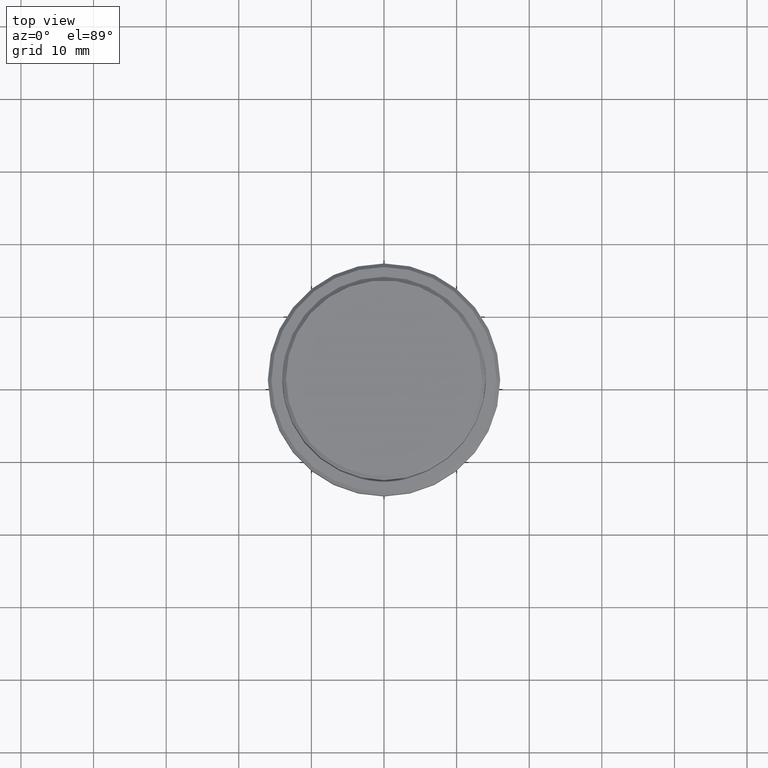
[diagram: clean part render]
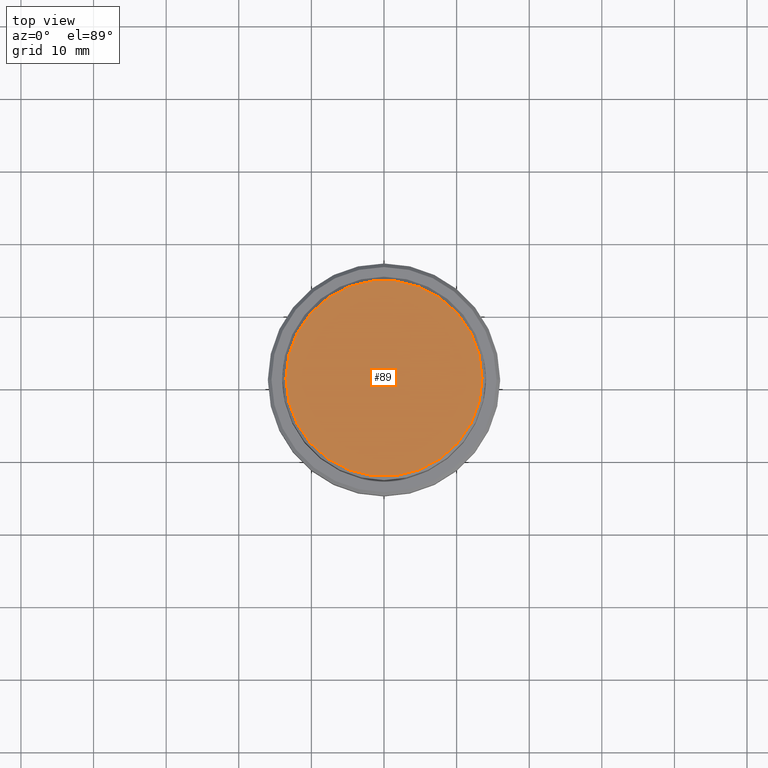
[diagram: same view with one face highlighted and labeled with its STEP entity id]
A machine part, top view. The second image highlights one B-rep face of the part: STEP entity #89.
In plain terms, the highlighted planar face has unit normal (0, -0, 1).
Its self-contained STEP definition (entity closure, byte-faithful):
#9 = CARTESIAN_POINT ( 'NONE',  ( 0.000000000000000000, 0.000000000000000000, 0.000000000000000000 ) ) ;
#89 = ADVANCED_FACE ( 'NONE', ( #781 ), #1082, .T. ) ;
#117 = ORIENTED_EDGE ( 'NONE', *, *, #202, .T. ) ;
#156 = DIRECTION ( 'NONE',  ( 1.000000000000000000, 0.000000000000000000, 0.000000000000000000 ) ) ;
#202 = EDGE_CURVE ( 'NONE', #363, #652, #1283, .T. ) ;
#214 = ORIENTED_EDGE ( 'NONE', *, *, #1078, .T. ) ;
#322 = CARTESIAN_POINT ( 'NONE',  ( 13.49999999999999822, 1.683889348827610456E-15, 0.000000000000000000 ) ) ;
#363 = VERTEX_POINT ( 'NONE', #1043 ) ;
#365 = CARTESIAN_POINT ( 'NONE',  ( 0.000000000000000000, 0.000000000000000000, 0.000000000000000000 ) ) ;
#454 = DIRECTION ( 'NONE',  ( 1.000000000000000000, 0.000000000000000000, 0.000000000000000000 ) ) ;
#482 = DIRECTION ( 'NONE',  ( -0.000000000000000000, -0.000000000000000000, 1.000000000000000000 ) ) ;
#652 = VERTEX_POINT ( 'NONE', #322 ) ;
#697 = DIRECTION ( 'NONE',  ( -0.000000000000000000, -0.000000000000000000, 1.000000000000000000 ) ) ;
#781 = FACE_OUTER_BOUND ( 'NONE', #1350, .T. ) ;
#795 = DIRECTION ( 'NONE',  ( 1.000000000000000000, 0.000000000000000000, 0.000000000000000000 ) ) ;
#827 = AXIS2_PLACEMENT_3D ( 'NONE', #9, #1208, #454 ) ;
#1020 = CARTESIAN_POINT ( 'NONE',  ( 0.000000000000000000, 0.000000000000000000, 0.000000000000000000 ) ) ;
#1043 = CARTESIAN_POINT ( 'NONE',  ( -13.49999999999999822, 0.000000000000000000, 0.000000000000000000 ) ) ;
#1078 = EDGE_CURVE ( 'NONE', #652, #363, #1192, .T. ) ;
#1082 = PLANE ( 'NONE',  #827 ) ;
#1116 = AXIS2_PLACEMENT_3D ( 'NONE', #1020, #697, #156 ) ;
#1171 = AXIS2_PLACEMENT_3D ( 'NONE', #365, #482, #795 ) ;
#1192 = CIRCLE ( 'NONE', #1171, 13.49999999999999822 ) ;
#1208 = DIRECTION ( 'NONE',  ( 0.000000000000000000, -0.000000000000000000, 1.000000000000000000 ) ) ;
#1283 = CIRCLE ( 'NONE', #1116, 13.49999999999999822 ) ;
#1350 = EDGE_LOOP ( 'NONE', ( #117, #214 ) ) ;